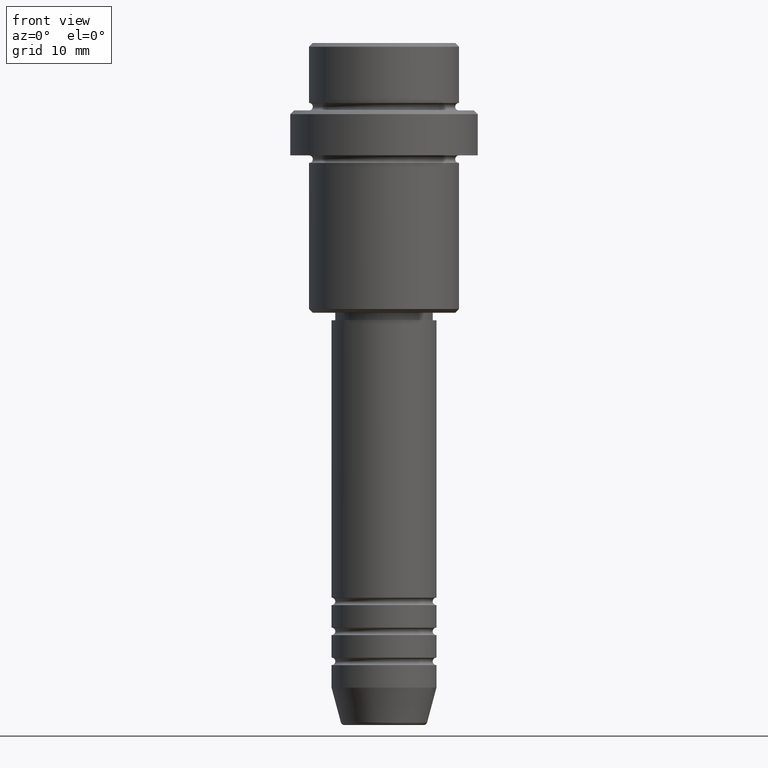
[diagram: clean part render]
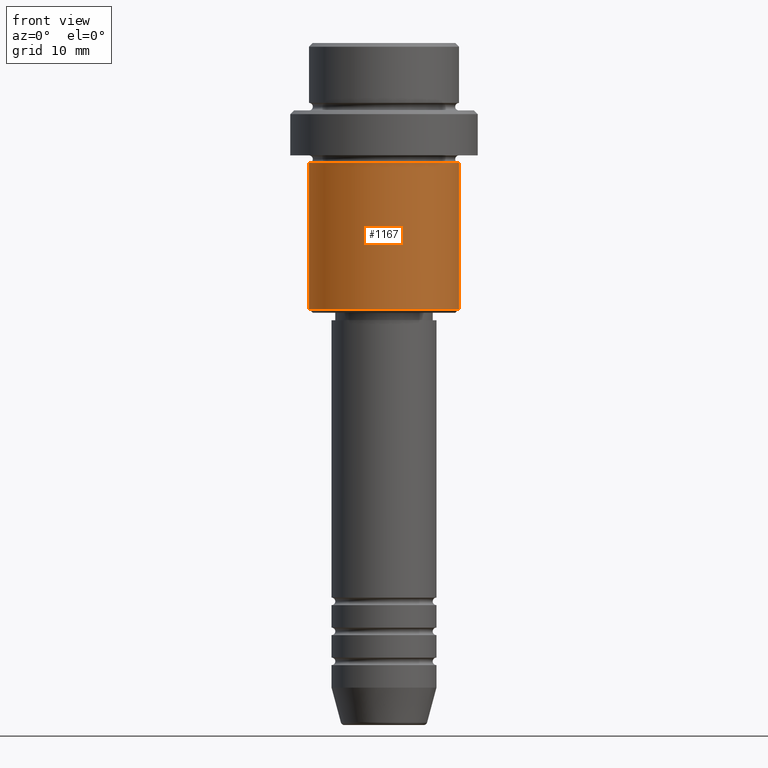
[diagram: same view with one face highlighted and labeled with its STEP entity id]
A machine part, front view. The second image highlights one B-rep face of the part: STEP entity #1167.
In plain terms, the highlighted cylindrical surface (partial cylindrical patch) has radius 10 mm, axis along (-0, -0, 1).
Its self-contained STEP definition (entity closure, byte-faithful):
#130 = VERTEX_POINT ( 'NONE', #1109 ) ;
#141 = VERTEX_POINT ( 'NONE', #682 ) ;
#156 = VERTEX_POINT ( 'NONE', #572 ) ;
#174 = LINE ( 'NONE', #1348, #411 ) ;
#197 = CARTESIAN_POINT ( 'NONE',  ( 0.000000000000000000, 0.000000000000000000, -16.00000000000000000 ) ) ;
#198 = CIRCLE ( 'NONE', #1359, 10.00000000000000000 ) ;
#229 = CARTESIAN_POINT ( 'NONE',  ( 10.00000000000000000, 0.000000000000000000, 0.000000000000000000 ) ) ;
#278 = CIRCLE ( 'NONE', #338, 10.00000000000000000 ) ;
#312 = EDGE_LOOP ( 'NONE', ( #970, #586, #1242, #1409 ) ) ;
#315 = VERTEX_POINT ( 'NONE', #747 ) ;
#338 = AXIS2_PLACEMENT_3D ( 'NONE', #695, #720, #1237 ) ;
#343 = EDGE_CURVE ( 'NONE', #315, #141, #198, .T. ) ;
#411 = VECTOR ( 'NONE', #1137, 1000.000000000000000 ) ;
#441 = CARTESIAN_POINT ( 'NONE',  ( 0.000000000000000000, 0.000000000000000000, 0.000000000000000000 ) ) ;
#531 = DIRECTION ( 'NONE',  ( -0.000000000000000000, -0.000000000000000000, 1.000000000000000000 ) ) ;
#572 = CARTESIAN_POINT ( 'NONE',  ( -10.00000000000000000, 1.224646799147353256E-15, -35.49999999999998579 ) ) ;
#586 = ORIENTED_EDGE ( 'NONE', *, *, #1065, .T. ) ;
#633 = DIRECTION ( 'NONE',  ( -0.000000000000000000, -0.000000000000000000, 1.000000000000000000 ) ) ;
#682 = CARTESIAN_POINT ( 'NONE',  ( 10.00000000000000000, 0.000000000000000000, -16.00000000000000000 ) ) ;
#695 = CARTESIAN_POINT ( 'NONE',  ( 0.000000000000000000, 0.000000000000000000, -35.49999999999998579 ) ) ;
#720 = DIRECTION ( 'NONE',  ( -0.000000000000000000, -0.000000000000000000, 1.000000000000000000 ) ) ;
#747 = CARTESIAN_POINT ( 'NONE',  ( -10.00000000000000000, 1.224646799147353256E-15, -16.00000000000000000 ) ) ;
#771 = LINE ( 'NONE', #229, #1319 ) ;
#806 = DIRECTION ( 'NONE',  ( 1.000000000000000000, 0.000000000000000000, 0.000000000000000000 ) ) ;
#967 = FACE_OUTER_BOUND ( 'NONE', #312, .T. ) ;
#970 = ORIENTED_EDGE ( 'NONE', *, *, #1030, .F. ) ;
#1007 = AXIS2_PLACEMENT_3D ( 'NONE', #441, #1179, #1306 ) ;
#1030 = EDGE_CURVE ( 'NONE', #156, #315, #174, .T. ) ;
#1065 = EDGE_CURVE ( 'NONE', #156, #130, #278, .T. ) ;
#1073 = CYLINDRICAL_SURFACE ( 'NONE', #1007, 10.00000000000000000 ) ;
#1109 = CARTESIAN_POINT ( 'NONE',  ( 10.00000000000000000, 0.000000000000000000, -35.49999999999998579 ) ) ;
#1137 = DIRECTION ( 'NONE',  ( -0.000000000000000000, -0.000000000000000000, 1.000000000000000000 ) ) ;
#1167 = ADVANCED_FACE ( 'NONE', ( #967 ), #1073, .T. ) ;
#1179 = DIRECTION ( 'NONE',  ( -0.000000000000000000, -0.000000000000000000, 1.000000000000000000 ) ) ;
#1211 = EDGE_CURVE ( 'NONE', #130, #141, #771, .T. ) ;
#1237 = DIRECTION ( 'NONE',  ( -1.000000000000000000, 0.000000000000000000, 0.000000000000000000 ) ) ;
#1242 = ORIENTED_EDGE ( 'NONE', *, *, #1211, .T. ) ;
#1306 = DIRECTION ( 'NONE',  ( 1.000000000000000000, 0.000000000000000000, 0.000000000000000000 ) ) ;
#1319 = VECTOR ( 'NONE', #531, 1000.000000000000000 ) ;
#1348 = CARTESIAN_POINT ( 'NONE',  ( -10.00000000000000000, 1.224646799147353256E-15, 0.000000000000000000 ) ) ;
#1359 = AXIS2_PLACEMENT_3D ( 'NONE', #197, #633, #806 ) ;
#1409 = ORIENTED_EDGE ( 'NONE', *, *, #343, .F. ) ;